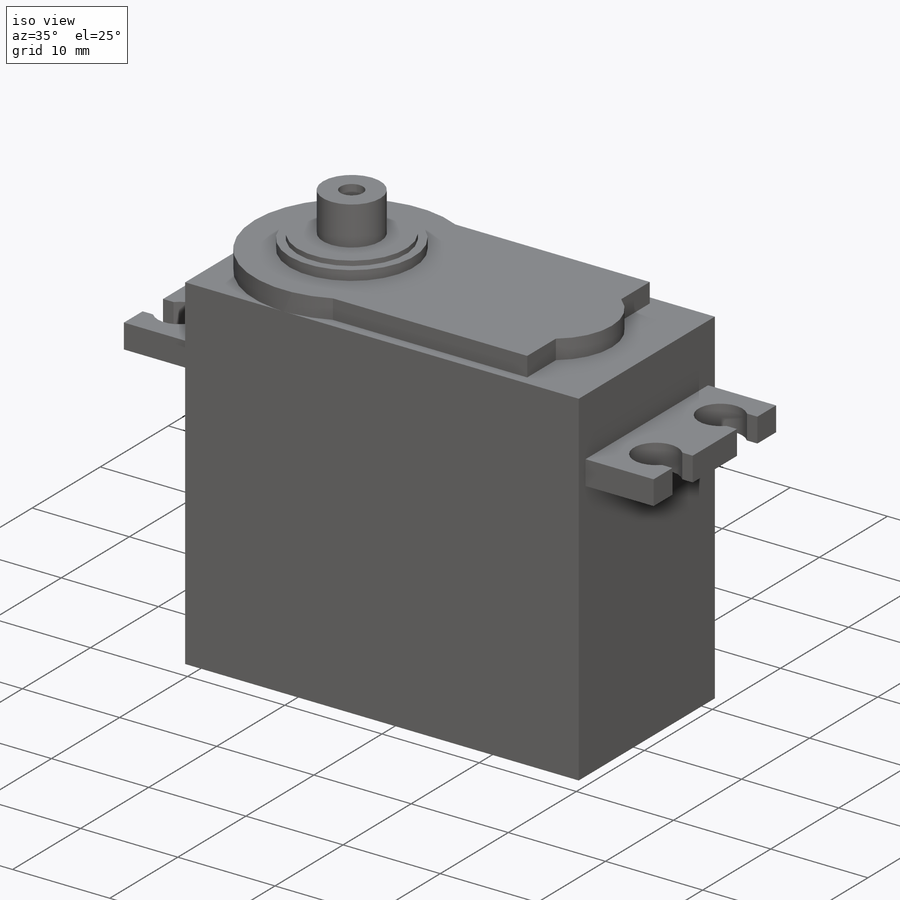
[diagram: iso view]
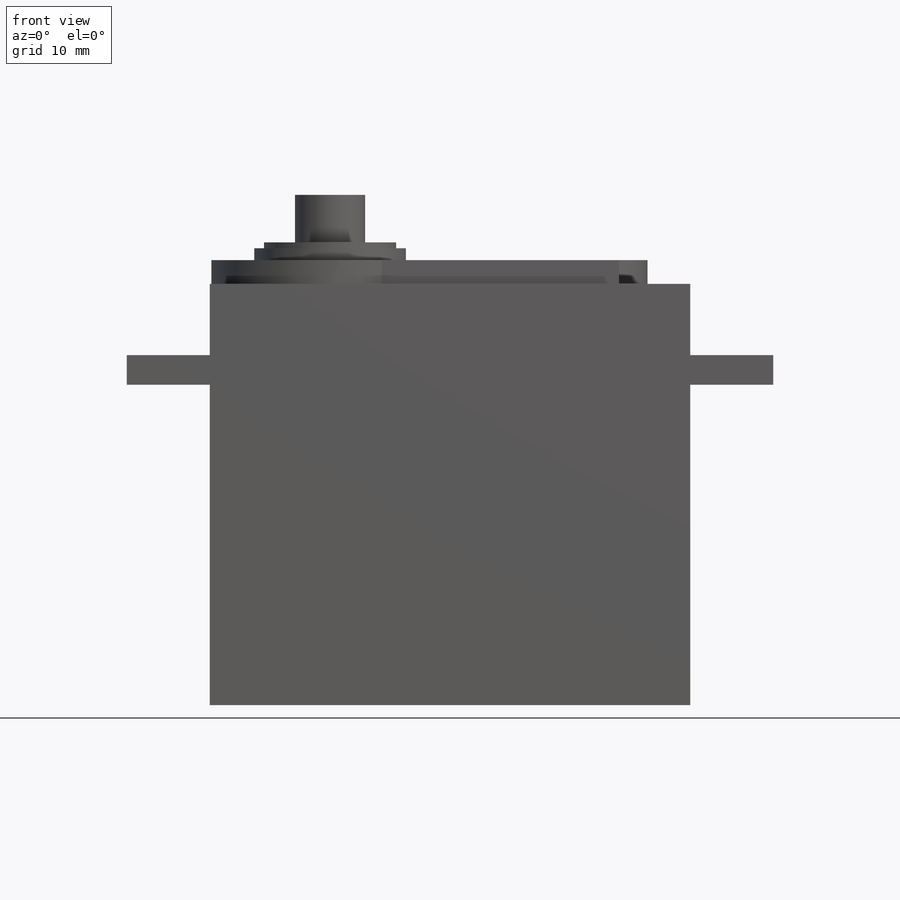
[diagram: front view]
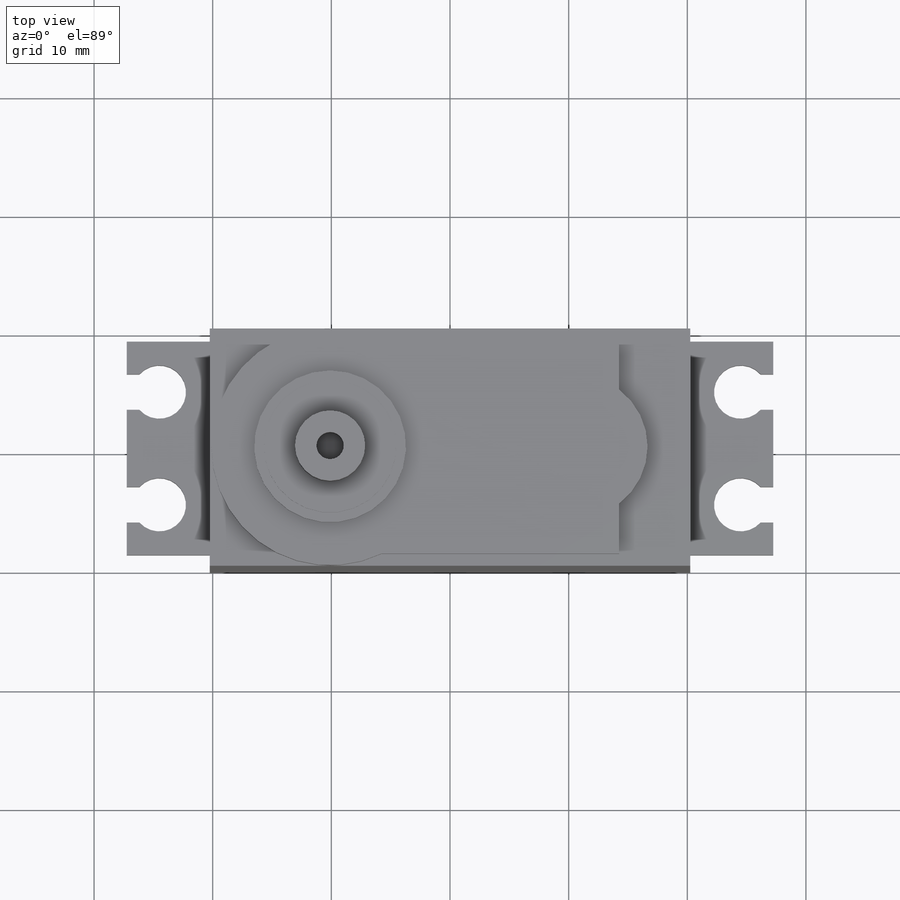
[diagram: top view]
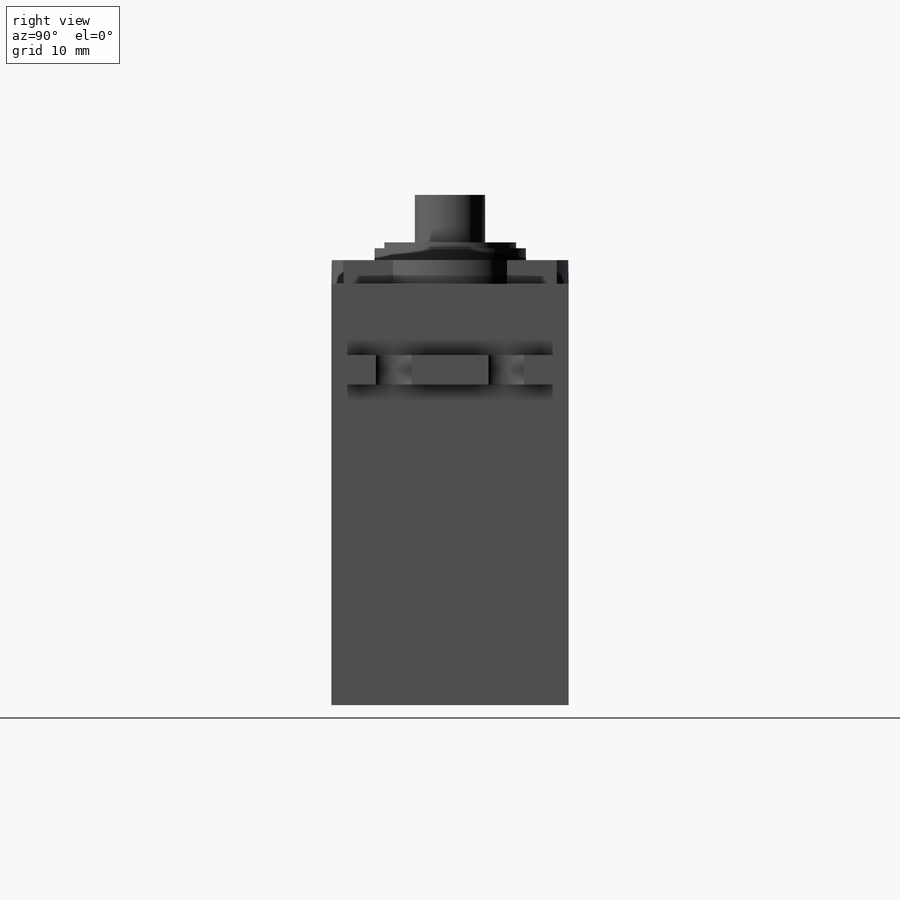
[diagram: right view]
SOLIDWORKS PART (.sldprt)
format: sldprt  version: not decoded by parser v0  size: 344,576 bytes
history: native  units: mm
features: sketch x15, plane x6, extrude x6, cut_extrude x4, cut_revolve x4, material x1, revolve x1 (+10 scaffold rows collapsed)
feature tree (47):
  scaffold x10  (default folders/planes/origin — collapsed)
  material  "Material <não especificado>"
  plane  "Plano frontal"
  plane  "Plano superior"
  plane  "Plano direito"
  plane  "Plano1"
  sketch  "Esboço1"
  extrude  "Ressalto-extrusão1"  Depth=20mm
  sketch  "Esboço2"
  extrude  "Ressalto-extrusão2"  Depth=2mm
  sketch  "Esboço3"
  extrude  "Ressalto-extrusão3"  Depth=7mm
  sketch  "Esboço4"
  cut_extrude  "Corte-extrusão1"  Depth=2.5mm
  sketch  "Esboço5"
  cut_extrude  "Corte-extrusão2"  Depth=2.5mm
  sketch  "Esboço6"
  extrude  "Ressalto-extrusão4"  Depth=2mm
  sketch  "Esboço7"
  extrude  "Ressalto-extrusão5"  Depth=7mm
  sketch  "Esboço8"
  cut_extrude  "Corte-extrusão3"  Depth=2.5mm
  sketch  "Esboço9"
  cut_extrude  "Corte-extrusão4"  Depth=2.5mm
  plane  "Plano2"  Offset=4.75mm
  sketch  "Esboço10"
  cut_revolve  "Corte-Revolução1"  Angle=360deg
  plane  "Plano3"  Offset=4.75mm
  sketch  "Esboço11"
  cut_revolve  "Corte-Revolução2"  Angle=360deg
  sketch  "Esboço12"
  cut_revolve  "Corte-Revolução3"  Angle=360deg
  sketch  "Esboço13"
  cut_revolve  "Corte-Revolução4"  Angle=360deg
  sketch  "Esboço14"
  revolve  "Revolução1"  Angle=360deg
  sketch  "Esboço15"  dims[D1=1.5mm]
  extrude  "Ressalto-extrusão6"  Depth=4mm
decode coverage: 16 of 30 modeling features carry decoded parameters
note: suppression state not decoded; provenance and decode notes live in map.json
